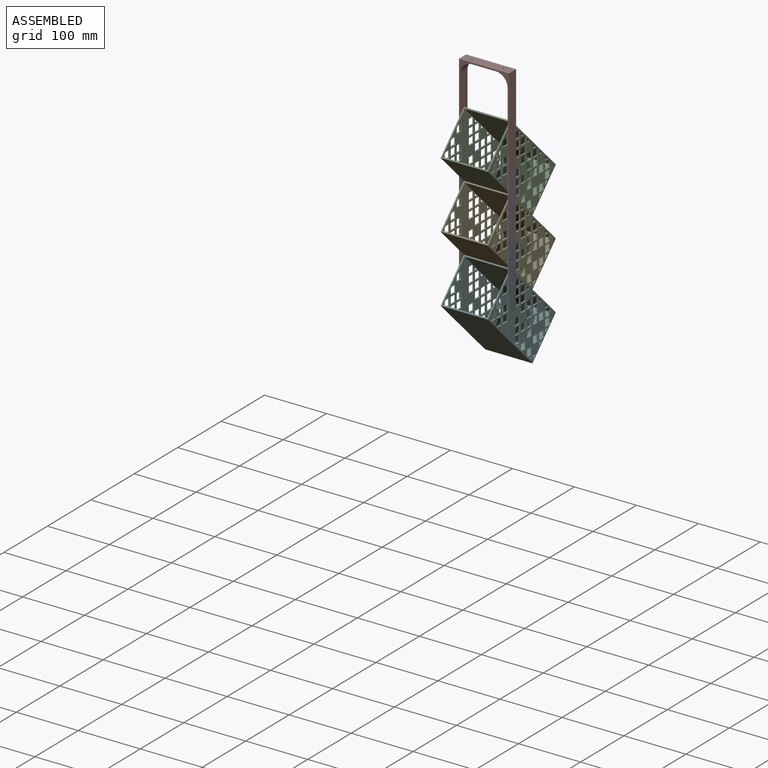
[diagram: assembled view]
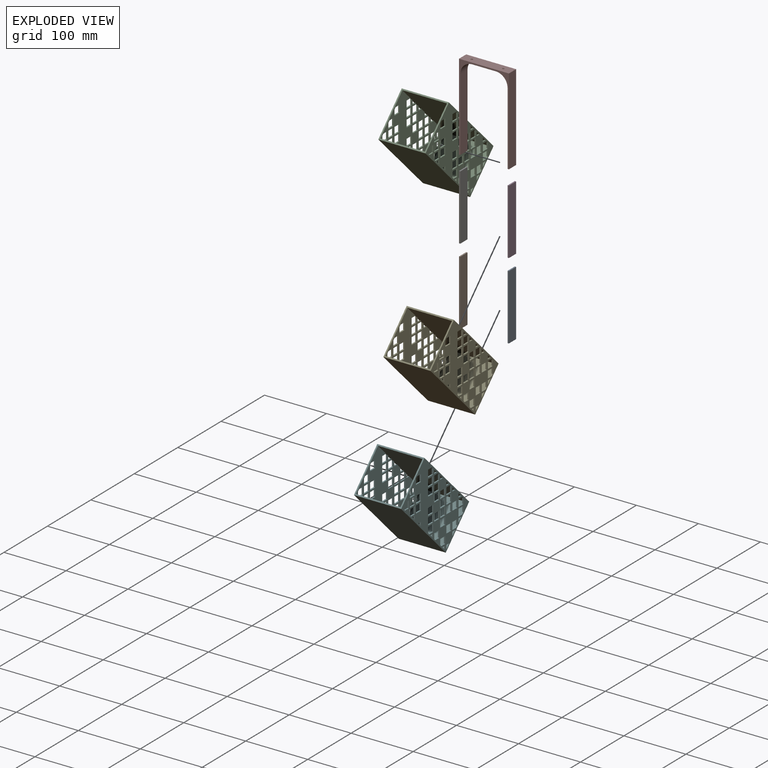
[diagram: exploded view]
GUIDED TOUR — MATED ASSEMBLY (Onshape document 206b5d691745eabc954fe0c9, AutoMate assembly 206b5d691745eabc954fe0c9_140a9b8f5469952bd9098de0_b365c3134beb357248d4164a_default)

This assembly has 8 components, labeled P0..P7 below (a component is one placed occurrence of a part; the same part can appear more than once), held together by 7 mates. A mate is a constraint between two components; its type names the relative motion it leaves free:
  FASTENED — locks the two components together rigidly (no relative motion),
  PLANAR — leaves sliding in the plane through the listed point (normal = the listed direction) and rotation about that normal free.
Axis/direction vectors are unit vectors and 'through' points are millimeter coordinates, both in the assembly's world frame.

MATES
  1. FASTENED "Fastened 1": P2 <-> P4, direction (0.000, -0.707, -0.707) through (-21.45, 42.66, -48.39) mm
  2. PLANAR "Planar 1": P2 <-> P7, direction (1.000, 0.000, 0.000) through (16.65, 36.85, -2.67) mm
  3. FASTENED "Fastened 3": P3 <-> P7, direction (0.000, 0.000, 1.000) through (17.73, 44.93, -9.99) mm
  4. FASTENED "Fastened 6": P6 <-> P1, direction (0.000, 0.000, -1.000) through (-60.63, 44.93, -115.40) mm
  5. FASTENED "Fastened 5": P6 <-> P7, direction (0.000, 0.000, 1.000) through (-60.63, 44.93, -9.99) mm
  6. FASTENED "Fastened 2": P5 <-> P4, direction (0.000, 0.707, 0.707) through (-21.45, 96.55, -210.04) mm
  7. FASTENED "Fastened 4": P3 <-> P0, direction (0.000, 0.000, -1.000) through (17.73, 44.93, -115.40) mm

ASSEMBLY ORDER
  1. P7 — the base component [order verified]
  2. P2 [order verified]
  3. P4 [order verified]
  4. P6 [order verified]
  5. P5 [order verified]
  6. P1 [order verified]
  7. P3 [order verified]
  8. P0 [order verified]
Order-tag legend:
  [order verified] — this step's position reverses a verified removal order: the component was checked to insert without passing through the ones already placed.

Of the 8 components, 7 carry the full construction recipe — the FeatureScript program that regenerates the part's solid from scratch; the rest are supplied as boundary geometry only.
Each toured component is shown spotlighted twice — in the assembled view, then in the exploded view, where a leader line traces a displaced component back to its assembled socket (saturated green if recipe-attached, orange if geometry-only; every other component desaturated gray) — followed by its recipe or geometry summary and the mates that hold it.
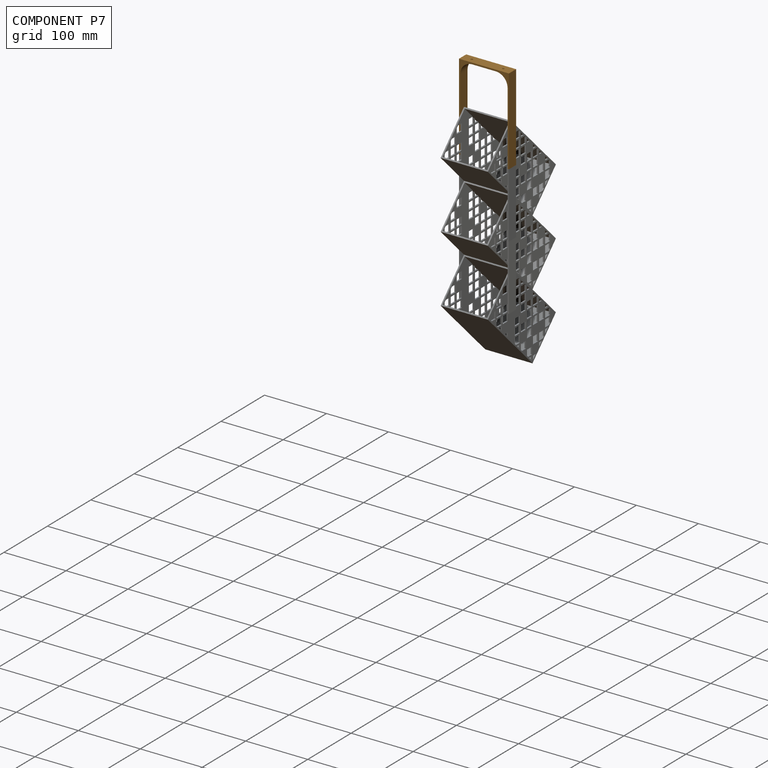
[diagram: component P7 — assembled]
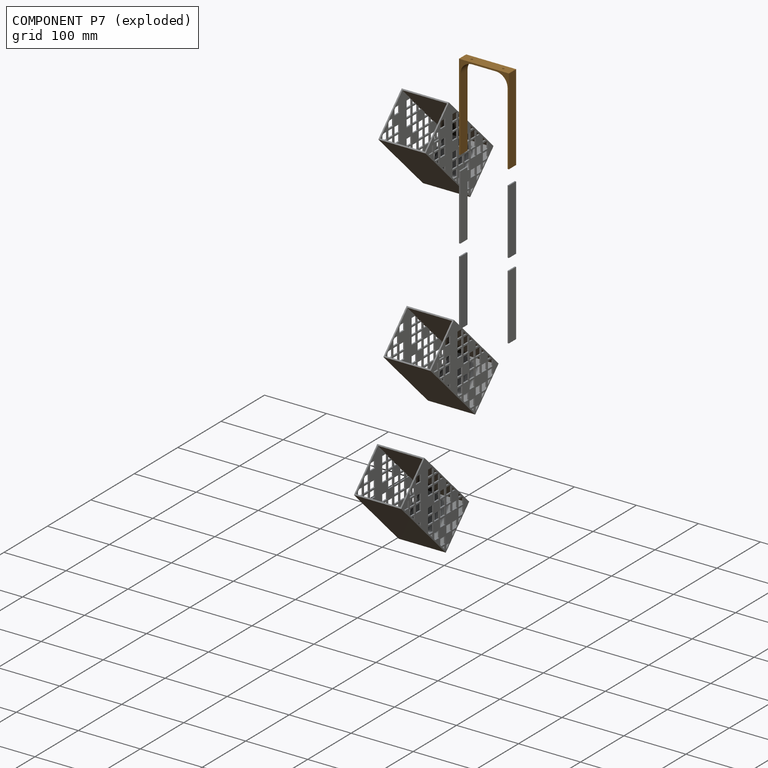
[diagram: component P7 — exploded]
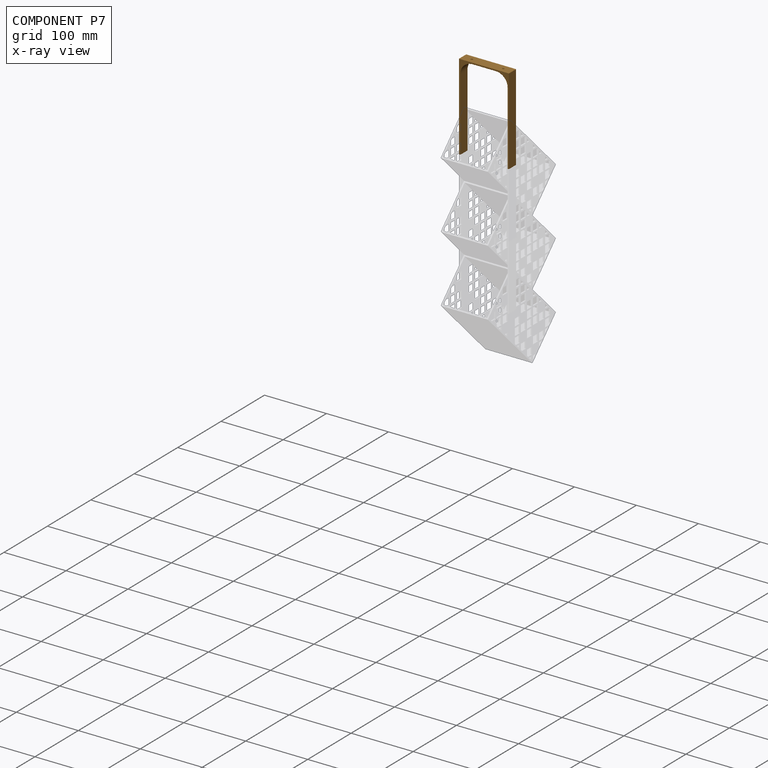
[diagram: component P7 — x-ray view]
COMPONENT P7 — geometry summary (no construction recipe available for this part):
  bounding box: 139.7 x 80.5 x 16.5 mm
  B-rep topology: 1 solid, 18 faces, 88 edges
  volume: 15716 mm^3 (8% of its bounding box)
  symmetry: 2-fold rotationally symmetric about the z axis; mirror-symmetric across its x mid-plane, y mid-plane
Held by: PLANAR mate "Planar 1" to P2; FASTENED mate "Fastened 3" to P3; FASTENED mate "Fastened 5" to P6.
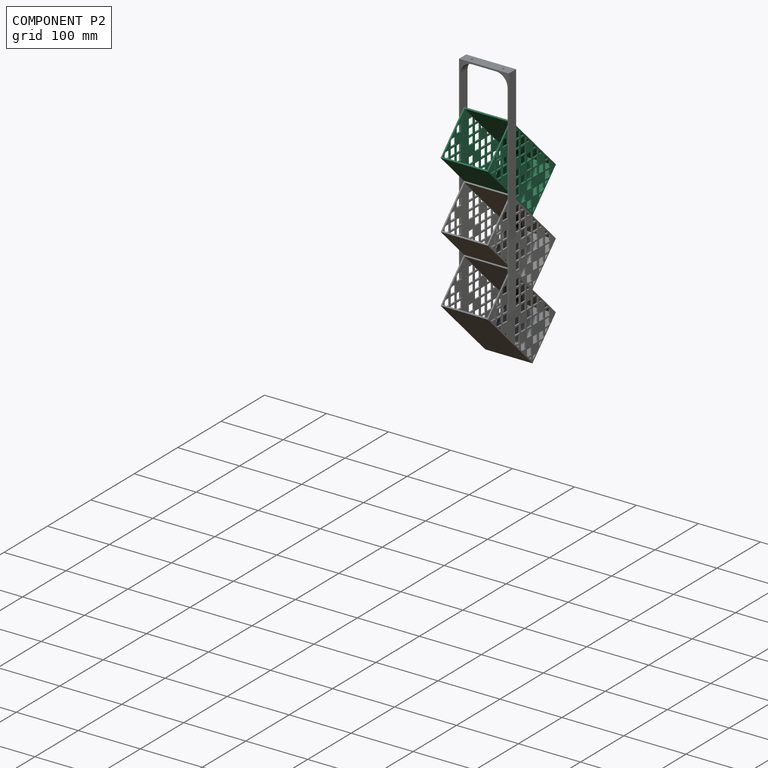
[diagram: component P2 — assembled]
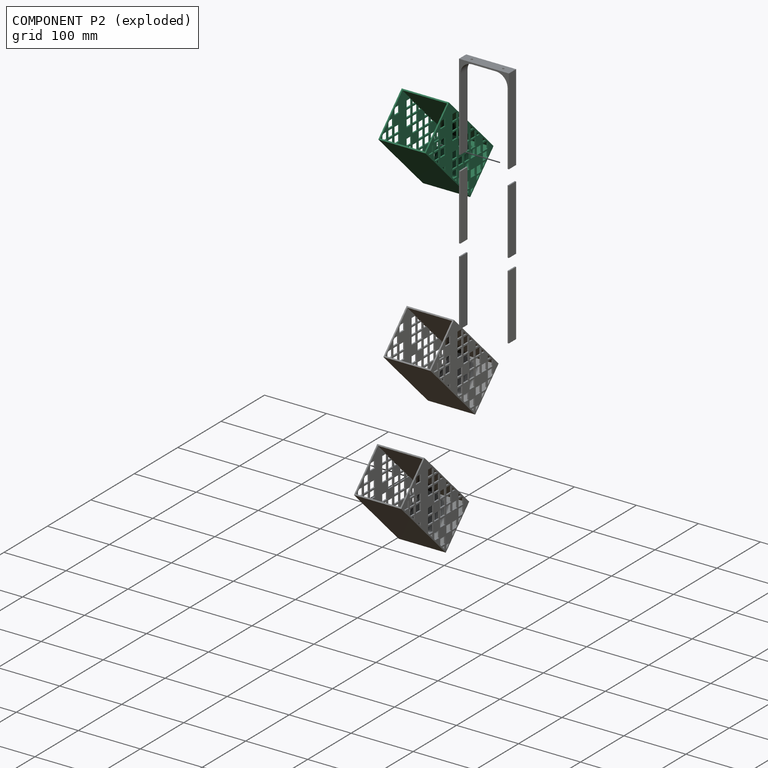
[diagram: component P2 — exploded]
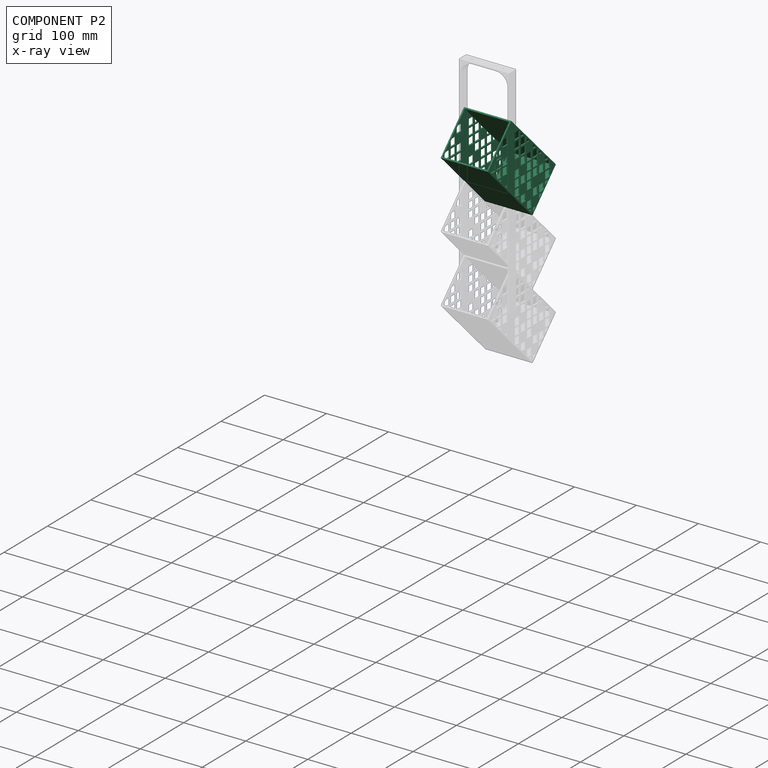
[diagram: component P2 — x-ray view]
COMPONENT P2 — recipe-attached (CADFS 00215293, mesh-verified: the recipe's output STEP matches this component's geometry to below the mesh-comparison resolution (tessellation chordal tolerance ~0.272 mm)).
Held by: FASTENED mate "Fastened 1" to P4; PLANAR mate "Planar 1" to P7.
Construction recipe (FeatureScript — the CAD program that rebuilds this solid; sketch coordinates are in the units given by the * unit suffixes, e.g. mm):

FeatureScript 1511;
import(path : "onshape/std/geometry.fs", version : "1511.0");
import(path : "onshape/std/common.fs", version : "1511.0");
const mm = millimeter;
const VERTEX = EntityType.VERTEX;
const EDGE = EntityType.EDGE;
const FACE = EntityType.FACE;
const BODY = EntityType.BODY;
function v(x, y){return vector(x, y);}
function OD(order){return orderDisambiguation(order);}
function OSD(set){return originalSetDisambiguation(set);}
function TD(topology){return topologyDisambiguation(topology);}
function TDD(query){return trueDependencyDisambiguation(query);}
function sQuery(a, b, c) {return sketchEntityQuery(a, b, c);}

annotation { "Feature Type Name" : "Feature", "Feature Type Description" : "" }
export const myFeature = defineFeature(function(context is Context, id is Id, definition is map)
    precondition{}
    {
        {
            var Q0;
            Q0=qCreatedBy(makeId("Top.planeOp"),FACE);
            var sketch = newSketch(context, id + "F0", { "sketchPlane" : qUnion([Q0])});
            skLineSegment(sketch, "E0.bottom", {"start": v(0, 0) * mm, "end": v(76.2, 0) * mm});
            skLineSegment(sketch, "E0.top", {"start": v(0, 76.2) * mm, "end": v(76.2, 76.2) * mm});
            skLineSegment(sketch, "E0.left", {"start": v(0, 0) * mm, "end": v(0, 76.2) * mm});
            skLineSegment(sketch, "E0.right", {"start": v(76.2, 0) * mm, "end": v(76.2, 76.2) * mm});
            skSolve(sketch);
        }
        {
            var Q0;
            Q0 = qSketchRegion(id + "F0", true);
            extrude(context, id + "F1", {"entities" : qUnion([Q0]), "depth" : 1.98 * mm});
        }
        {
            var Q0;
            Q0=makeQuery(id+"F1.opExtrude","CAP_FACE",FACE,{"disambiguationData":[OSD([sQuery(id+"F0.wireOp",EDGE,"E0.bottom"),sQuery(id+"F0.wireOp",EDGE,"E0.top"),sQuery(id+"F0.wireOp",EDGE,"E0.left"),sQuery(id+"F0.wireOp",EDGE,"E0.right")])],"isStart":false});
            var sketch = newSketch(context, id + "F2", { "sketchPlane" : qUnion([Q0])});
            skLineSegment(sketch, "E1.0", {"start": v(0, 76.2) * mm, "end": v(76.2, 76.2) * mm});
            skLineSegment(sketch, "E1.1", {"start": v(76.2, 0) * mm, "end": v(76.2, 76.2) * mm});
            skLineSegment(sketch, "E1.2", {"start": v(0, 0) * mm, "end": v(76.2, 0) * mm});
            skLineSegment(sketch, "E1.3", {"start": v(0, 0) * mm, "end": v(0, 76.2) * mm});
            skLineSegment(sketch, "E2.0", {"start": v(2.16, 2.16) * mm, "end": v(2.16, 74.04) * mm});
            skLineSegment(sketch, "E2.1", {"start": v(2.16, 2.16) * mm, "end": v(74.04, 2.16) * mm});
            skLineSegment(sketch, "E2.2", {"start": v(74.04, 2.16) * mm, "end": v(74.04, 74.04) * mm});
            skLineSegment(sketch, "E2.3", {"start": v(2.16, 74.04) * mm, "end": v(74.04, 74.04) * mm});
            skSolve(sketch);
        }
        {
            var Q0;
            Q0 = qSketchRegion(id + "F2", true);
            extrude(context, id + "F3", {"entities" : qUnion([Q0]), "operationType" : NewBodyOperationType.ADD, "depth" : 143.5 * mm});
        }
        {
            var Q0;
            Q0=makeQuery(id+"F3.boolean.opBoolean","MERGE",FACE,{"derivedFrom":[makeQuery(id+"F1.opExtrude","SWEPT_FACE",FACE,{"disambiguationData":[OSD([sQuery(id+"F0.wireOp",EDGE,"E0.bottom")])]}),makeQuery(id+"F3.opExtrude","SWEPT_FACE",FACE,{"disambiguationData":[OSD([sQuery(id+"F2.wireOp",EDGE,"E1.2")])]})]});
            var sketch = newSketch(context, id + "F4", { "sketchPlane" : qUnion([Q0])});
            skLineSegment(sketch, "E3", {"start": v(76.2, 137.41) * mm, "end": v(0, 61.21) * mm});
            skLineSegment(sketch, "E4", {"start": v(0, 61.21) * mm, "end": v(0, 77.38) * mm});
            skLineSegment(sketch, "E5", {"start": v(0, 77.38) * mm, "end": v(68.12, 145.5) * mm});
            skLineSegment(sketch, "E6", {"start": v(68.12, 145.5) * mm, "end": v(76.2, 145.5) * mm});
            skLineSegment(sketch, "E7", {"start": v(76.2, 145.5) * mm, "end": v(76.2, 137.41) * mm});
            skLineSegment(sketch, "E8", {"start": v(76.2, 133.82) * mm, "end": v(0, 57.62) * mm});
            skLineSegment(sketch, "E9", {"start": v(0, 57.62) * mm, "end": v(0, 41.46) * mm});
            skLineSegment(sketch, "E10", {"start": v(0, 41.46) * mm, "end": v(76.2, 117.66) * mm});
            skLineSegment(sketch, "E11", {"start": v(76.2, 117.66) * mm, "end": v(76.2, 133.82) * mm});
            skLineSegment(sketch, "E12", {"start": v(76.2, 114.06) * mm, "end": v(0, 37.86) * mm});
            skLineSegment(sketch, "E13", {"start": v(0, 37.86) * mm, "end": v(0, 21.7) * mm});
            skLineSegment(sketch, "E14", {"start": v(0, 21.7) * mm, "end": v(76.2, 97.9) * mm});
            skLineSegment(sketch, "E15", {"start": v(76.2, 97.9) * mm, "end": v(76.2, 114.06) * mm});
            skLineSegment(sketch, "E16", {"start": v(76.2, 94.3) * mm, "end": v(0, 18.1) * mm});
            skLineSegment(sketch, "E17", {"start": v(0, 18.1) * mm, "end": v(0, 1.94) * mm});
            skLineSegment(sketch, "E18", {"start": v(0, 1.94) * mm, "end": v(76.2, 78.14) * mm});
            skLineSegment(sketch, "E19", {"start": v(76.2, 78.14) * mm, "end": v(76.2, 94.3) * mm});
            skLineSegment(sketch, "E20", {"start": v(76.2, 74.55) * mm, "end": v(1.65, 0) * mm});
            skLineSegment(sketch, "E21", {"start": v(1.65, 0) * mm, "end": v(17.81, 0) * mm});
            skLineSegment(sketch, "E22", {"start": v(17.81, 0) * mm, "end": v(76.2, 58.39) * mm});
            skLineSegment(sketch, "E23", {"start": v(76.2, 58.39) * mm, "end": v(76.2, 74.55) * mm});
            skLineSegment(sketch, "E24", {"start": v(76.2, 54.8) * mm, "end": v(21.4, 0) * mm});
            skLineSegment(sketch, "E25", {"start": v(21.4, 0) * mm, "end": v(37.57, 0) * mm});
            skLineSegment(sketch, "E26", {"start": v(37.57, 0) * mm, "end": v(76.2, 38.63) * mm});
            skLineSegment(sketch, "E27", {"start": v(76.2, 38.63) * mm, "end": v(76.2, 54.8) * mm});
            skLineSegment(sketch, "E28", {"start": v(76.2, 35.04) * mm, "end": v(41.16, 0) * mm});
            skLineSegment(sketch, "E29", {"start": v(41.16, 0) * mm, "end": v(57.33, 0) * mm});
            skLineSegment(sketch, "E30", {"start": v(57.33, 0) * mm, "end": v(76.2, 18.87) * mm});
            skLineSegment(sketch, "E31", {"start": v(76.2, 18.87) * mm, "end": v(76.2, 35.04) * mm});
            skLineSegment(sketch, "E32", {"start": v(76.2, 15.28) * mm, "end": v(60.92, 0) * mm});
            skLineSegment(sketch, "E33", {"start": v(64.53, 145.5) * mm, "end": v(0, 80.97) * mm});
            skLineSegment(sketch, "E34", {"start": v(0, 80.97) * mm, "end": v(0, 97.13) * mm});
            skLineSegment(sketch, "E35", {"start": v(0, 97.13) * mm, "end": v(48.36, 145.5) * mm});
            skLineSegment(sketch, "E36", {"start": v(48.36, 145.5) * mm, "end": v(64.53, 145.5) * mm});
            skLineSegment(sketch, "E37", {"start": v(44.77, 145.5) * mm, "end": v(0, 100.72) * mm});
            skLineSegment(sketch, "E38", {"start": v(0, 100.72) * mm, "end": v(0, 116.89) * mm});
            skLineSegment(sketch, "E39", {"start": v(0, 116.89) * mm, "end": v(28.6, 145.5) * mm});
            skLineSegment(sketch, "E40", {"start": v(28.6, 145.5) * mm, "end": v(44.77, 145.5) * mm});
            skLineSegment(sketch, "E41", {"start": v(25.01, 145.5) * mm, "end": v(0, 120.48) * mm});
            skLineSegment(sketch, "E42", {"start": v(0, 120.48) * mm, "end": v(0, 136.65) * mm});
            skLineSegment(sketch, "E43", {"start": v(0, 136.65) * mm, "end": v(8.85, 145.5) * mm});
            skLineSegment(sketch, "E44", {"start": v(8.85, 145.5) * mm, "end": v(25.01, 145.5) * mm});
            skLineSegment(sketch, "E45", {"start": v(8.08, 145.5) * mm, "end": v(76.2, 77.38) * mm});
            skLineSegment(sketch, "E46", {"start": v(76.2, 77.38) * mm, "end": v(76.2, 61.21) * mm});
            skLineSegment(sketch, "E47", {"start": v(76.2, 61.21) * mm, "end": v(0, 137.41) * mm});
            skLineSegment(sketch, "E48", {"start": v(0, 133.82) * mm, "end": v(76.2, 57.62) * mm});
            skLineSegment(sketch, "E49", {"start": v(76.2, 57.62) * mm, "end": v(76.2, 41.46) * mm});
            skLineSegment(sketch, "E50", {"start": v(76.2, 41.46) * mm, "end": v(0, 117.66) * mm});
            skLineSegment(sketch, "E51", {"start": v(0, 117.66) * mm, "end": v(0, 133.82) * mm});
            skLineSegment(sketch, "E52", {"start": v(0, 114.06) * mm, "end": v(76.2, 37.86) * mm});
            skLineSegment(sketch, "E53", {"start": v(76.2, 37.86) * mm, "end": v(76.2, 21.7) * mm});
            skLineSegment(sketch, "E54", {"start": v(76.2, 21.7) * mm, "end": v(0, 97.9) * mm});
            skLineSegment(sketch, "E55", {"start": v(0, 97.9) * mm, "end": v(0, 114.06) * mm});
            skLineSegment(sketch, "E56", {"start": v(0, 94.3) * mm, "end": v(76.2, 18.1) * mm});
            skLineSegment(sketch, "E57", {"start": v(76.2, 18.1) * mm, "end": v(76.2, 15.28) * mm});
            skLineSegment(sketch, "E58", {"start": v(0, 78.14) * mm, "end": v(76.2, 1.94) * mm});
            skLineSegment(sketch, "E59", {"start": v(0, 74.55) * mm, "end": v(74.55, 0) * mm});
            skLineSegment(sketch, "E60", {"start": v(0, 58.39) * mm, "end": v(58.39, 0) * mm});
            skLineSegment(sketch, "E61", {"start": v(58.39, 0) * mm, "end": v(54.8, 0) * mm});
            skLineSegment(sketch, "E62", {"start": v(54.8, 0) * mm, "end": v(0, 54.8) * mm});
            skLineSegment(sketch, "E63", {"start": v(0, 54.8) * mm, "end": v(0, 58.39) * mm});
            skLineSegment(sketch, "E64", {"start": v(0, 38.63) * mm, "end": v(38.63, 0) * mm});
            skLineSegment(sketch, "E65", {"start": v(38.63, 0) * mm, "end": v(35.04, 0) * mm});
            skLineSegment(sketch, "E66", {"start": v(35.04, 0) * mm, "end": v(0, 35.04) * mm});
            skLineSegment(sketch, "E67", {"start": v(0, 35.04) * mm, "end": v(0, 38.63) * mm});
            skLineSegment(sketch, "E68", {"start": v(0, 18.87) * mm, "end": v(18.87, 0) * mm});
            skLineSegment(sketch, "E69", {"start": v(18.87, 0) * mm, "end": v(15.28, 0) * mm});
            skLineSegment(sketch, "E70", {"start": v(15.28, 0) * mm, "end": v(0, 15.28) * mm});
            skLineSegment(sketch, "E71", {"start": v(0, 15.28) * mm, "end": v(0, 18.87) * mm});
            skLineSegment(sketch, "E72", {"start": v(11.67, 145.5) * mm, "end": v(76.2, 80.97) * mm});
            skLineSegment(sketch, "E73", {"start": v(27.84, 145.5) * mm, "end": v(76.2, 97.13) * mm});
            skLineSegment(sketch, "E74", {"start": v(76.2, 97.13) * mm, "end": v(76.2, 100.72) * mm});
            skLineSegment(sketch, "E75", {"start": v(76.2, 100.72) * mm, "end": v(31.43, 145.5) * mm});
            skLineSegment(sketch, "E76", {"start": v(31.43, 145.5) * mm, "end": v(27.84, 145.5) * mm});
            skLineSegment(sketch, "E77", {"start": v(47.6, 145.5) * mm, "end": v(76.2, 116.89) * mm});
            skLineSegment(sketch, "E78", {"start": v(76.2, 116.89) * mm, "end": v(76.2, 120.48) * mm});
            skLineSegment(sketch, "E79", {"start": v(76.2, 120.48) * mm, "end": v(51.19, 145.5) * mm});
            skLineSegment(sketch, "E80", {"start": v(51.19, 145.5) * mm, "end": v(47.6, 145.5) * mm});
            skLineSegment(sketch, "E81", {"start": v(67.35, 145.5) * mm, "end": v(76.2, 136.65) * mm});
            skLineSegment(sketch, "E82.0", {"start": v(2.16, 2.16) * mm, "end": v(74.04, 2.16) * mm});
            skLineSegment(sketch, "E82.1", {"start": v(2.16, 143.34) * mm, "end": v(2.16, 2.16) * mm});
            skLineSegment(sketch, "E82.2", {"start": v(2.16, 143.34) * mm, "end": v(74.04, 143.34) * mm});
            skLineSegment(sketch, "E82.3", {"start": v(74.04, 143.34) * mm, "end": v(74.04, 2.16) * mm});
            skSolve(sketch);
        }
        {
            var Q0;
            {var subQ1=sQuery(id+"F4.wireOp",EDGE,"E41");var subQ5=sQuery(id+"F4.wireOp",EDGE,"E45");var subQ6=makeQuery(id+"F4.imprint","INTERSECT",VERTEX,{"derivedFrom":[subQ1,subQ5]});Q0=makeQuery(id+"F4.imprint","IMPRINT",FACE,{"disambiguationData":[TD([[makeQuery(id+"F4.imprint","IMPRINT",EDGE,{"disambiguationData":[TD([[subQ6,-1.0]])],"derivedFrom":subQ1}),-1.0]])]});}
            var Q1;
            {var subQ1=sQuery(id+"F4.wireOp",EDGE,"E37");var subQ5=sQuery(id+"F4.wireOp",EDGE,"E73");var subQ6=makeQuery(id+"F4.imprint","INTERSECT",VERTEX,{"derivedFrom":[subQ1,subQ5]});Q1=makeQuery(id+"F4.imprint","IMPRINT",FACE,{"disambiguationData":[TD([[makeQuery(id+"F4.imprint","IMPRINT",EDGE,{"disambiguationData":[TD([[subQ6,-1.0]])],"derivedFrom":subQ1}),-1.0]])]});}
            var Q2;
            {var subQ0=sQuery(id+"F4.wireOp",EDGE,"E77");var subQ1=sQuery(id+"F4.wireOp",EDGE,"E33");var subQ2=makeQuery(id+"F4.imprint","INTERSECT",VERTEX,{"derivedFrom":[subQ1,subQ0]});Q2=makeQuery(id+"F4.imprint","IMPRINT",FACE,{"disambiguationData":[TD([[makeQuery(id+"F4.imprint","IMPRINT",EDGE,{"disambiguationData":[TD([[subQ2,-1.0]])],"derivedFrom":subQ1}),-1.0]])]});}
            var Q3;
            {var subQ0=sQuery(id+"F4.wireOp",EDGE,"E45");var subQ1=sQuery(id+"F4.wireOp",EDGE,"E37");var subQ2=makeQuery(id+"F4.imprint","INTERSECT",VERTEX,{"derivedFrom":[subQ1,subQ0]});Q3=makeQuery(id+"F4.imprint","IMPRINT",FACE,{"disambiguationData":[TD([[makeQuery(id+"F4.imprint","IMPRINT",EDGE,{"disambiguationData":[TD([[subQ2,-1.0]])],"derivedFrom":subQ1}),-1.0]])]});}
            var Q4;
            {var subQ1=sQuery(id+"F4.wireOp",EDGE,"E37");var subQ5=sQuery(id+"F4.wireOp",EDGE,"E48");var subQ6=makeQuery(id+"F4.imprint","INTERSECT",VERTEX,{"derivedFrom":[subQ1,subQ5]});Q4=makeQuery(id+"F4.imprint","IMPRINT",FACE,{"disambiguationData":[TD([[makeQuery(id+"F4.imprint","IMPRINT",EDGE,{"disambiguationData":[TD([[subQ6,-1.0]])],"derivedFrom":subQ1}),-1.0]])]});}
            var Q5;
            {var subQ0=sQuery(id+"F4.wireOp",EDGE,"E48");var subQ1=sQuery(id+"F4.wireOp",EDGE,"E33");var subQ2=makeQuery(id+"F4.imprint","INTERSECT",VERTEX,{"derivedFrom":[subQ1,subQ0]});Q5=makeQuery(id+"F4.imprint","IMPRINT",FACE,{"disambiguationData":[TD([[makeQuery(id+"F4.imprint","IMPRINT",EDGE,{"disambiguationData":[TD([[subQ2,-1.0]])],"derivedFrom":subQ1}),-1.0]])]});}
            var Q6;
            {var subQ0=sQuery(id+"F4.wireOp",EDGE,"E45");var subQ1=sQuery(id+"F4.wireOp",EDGE,"E33");var subQ2=makeQuery(id+"F4.imprint","INTERSECT",VERTEX,{"derivedFrom":[subQ1,subQ0]});Q6=makeQuery(id+"F4.imprint","IMPRINT",FACE,{"disambiguationData":[TD([[makeQuery(id+"F4.imprint","IMPRINT",EDGE,{"disambiguationData":[TD([[subQ2,-1.0]])],"derivedFrom":subQ1}),-1.0]])]});}
            var Q7;
            {var subQ1=sQuery(id+"F4.wireOp",EDGE,"E8");var subQ7=sQuery(id+"F4.wireOp",EDGE,"E77");var subQ8=makeQuery(id+"F4.imprint","INTERSECT",VERTEX,{"derivedFrom":[subQ1,subQ7]});Q7=makeQuery(id+"F4.imprint","IMPRINT",FACE,{"disambiguationData":[TD([[makeQuery(id+"F4.imprint","IMPRINT",EDGE,{"disambiguationData":[TD([[subQ8,-1.0]])],"derivedFrom":subQ1}),1.0]])]});}
            var Q8;
            {var subQ0=sQuery(id+"F4.wireOp",EDGE,"E73");var subQ1=sQuery(id+"F4.wireOp",EDGE,"E8");var subQ2=makeQuery(id+"F4.imprint","INTERSECT",VERTEX,{"derivedFrom":[subQ1,subQ0]});Q8=makeQuery(id+"F4.imprint","IMPRINT",FACE,{"disambiguationData":[TD([[makeQuery(id+"F4.imprint","IMPRINT",EDGE,{"disambiguationData":[TD([[subQ2,-1.0]])],"derivedFrom":subQ1}),1.0]])]});}
            var Q9;
            {var subQ0=sQuery(id+"F4.wireOp",EDGE,"E45");var subQ1=sQuery(id+"F4.wireOp",EDGE,"E8");var subQ2=makeQuery(id+"F4.imprint","INTERSECT",VERTEX,{"derivedFrom":[subQ1,subQ0]});Q9=makeQuery(id+"F4.imprint","IMPRINT",FACE,{"disambiguationData":[TD([[makeQuery(id+"F4.imprint","IMPRINT",EDGE,{"disambiguationData":[TD([[subQ2,-1.0]])],"derivedFrom":subQ1}),1.0]])]});}
            var Q10;
            {var subQ0=sQuery(id+"F4.wireOp",EDGE,"E52");var subQ1=sQuery(id+"F4.wireOp",EDGE,"E8");var subQ2=makeQuery(id+"F4.imprint","INTERSECT",VERTEX,{"derivedFrom":[subQ1,subQ0]});Q10=makeQuery(id+"F4.imprint","IMPRINT",FACE,{"disambiguationData":[TD([[makeQuery(id+"F4.imprint","IMPRINT",EDGE,{"disambiguationData":[TD([[subQ2,-1.0]])],"derivedFrom":subQ1}),1.0]])]});}
            var Q11;
            {var subQ0=sQuery(id+"F4.wireOp",EDGE,"E56");var subQ1=sQuery(id+"F4.wireOp",EDGE,"E8");var subQ2=makeQuery(id+"F4.imprint","INTERSECT",VERTEX,{"derivedFrom":[subQ1,subQ0]});Q11=makeQuery(id+"F4.imprint","IMPRINT",FACE,{"disambiguationData":[TD([[makeQuery(id+"F4.imprint","IMPRINT",EDGE,{"disambiguationData":[TD([[subQ2,-1.0]])],"derivedFrom":subQ1}),1.0]])]});}
            var Q12;
            {var subQ5=sQuery(id+"F4.wireOp",EDGE,"E59");var subQ6=sQuery(id+"F4.wireOp",EDGE,"E8");var subQ7=makeQuery(id+"F4.imprint","INTERSECT",VERTEX,{"derivedFrom":[subQ6,subQ5]});Q12=makeQuery(id+"F4.imprint","IMPRINT",FACE,{"disambiguationData":[TD([[makeQuery(id+"F4.imprint","IMPRINT",EDGE,{"disambiguationData":[TD([[subQ7,-1.0]])],"derivedFrom":subQ6}),1.0]])]});}
            var Q13;
            {var subQ0=sQuery(id+"F4.wireOp",EDGE,"E73");var subQ1=sQuery(id+"F4.wireOp",EDGE,"E12");var subQ2=makeQuery(id+"F4.imprint","INTERSECT",VERTEX,{"derivedFrom":[subQ1,subQ0]});Q13=makeQuery(id+"F4.imprint","IMPRINT",FACE,{"disambiguationData":[TD([[makeQuery(id+"F4.imprint","IMPRINT",EDGE,{"disambiguationData":[TD([[subQ2,-1.0]])],"derivedFrom":subQ1}),1.0]])]});}
            var Q14;
            {var subQ0=sQuery(id+"F4.wireOp",EDGE,"E45");var subQ1=sQuery(id+"F4.wireOp",EDGE,"E12");var subQ2=makeQuery(id+"F4.imprint","INTERSECT",VERTEX,{"derivedFrom":[subQ1,subQ0]});Q14=makeQuery(id+"F4.imprint","IMPRINT",FACE,{"disambiguationData":[TD([[makeQuery(id+"F4.imprint","IMPRINT",EDGE,{"disambiguationData":[TD([[subQ2,-1.0]])],"derivedFrom":subQ1}),1.0]])]});}
            var Q15;
            {var subQ0=sQuery(id+"F4.wireOp",EDGE,"E48");var subQ1=sQuery(id+"F4.wireOp",EDGE,"E12");var subQ2=makeQuery(id+"F4.imprint","INTERSECT",VERTEX,{"derivedFrom":[subQ1,subQ0]});Q15=makeQuery(id+"F4.imprint","IMPRINT",FACE,{"disambiguationData":[TD([[makeQuery(id+"F4.imprint","IMPRINT",EDGE,{"disambiguationData":[TD([[subQ2,-1.0]])],"derivedFrom":subQ1}),1.0]])]});}
            var Q16;
            {var subQ0=sQuery(id+"F4.wireOp",EDGE,"E56");var subQ1=sQuery(id+"F4.wireOp",EDGE,"E12");var subQ2=makeQuery(id+"F4.imprint","INTERSECT",VERTEX,{"derivedFrom":[subQ1,subQ0]});Q16=makeQuery(id+"F4.imprint","IMPRINT",FACE,{"disambiguationData":[TD([[makeQuery(id+"F4.imprint","IMPRINT",EDGE,{"disambiguationData":[TD([[subQ2,-1.0]])],"derivedFrom":subQ1}),1.0]])]});}
            var Q17;
            {var subQ5=sQuery(id+"F4.wireOp",EDGE,"E62");var subQ6=sQuery(id+"F4.wireOp",EDGE,"E12");var subQ7=makeQuery(id+"F4.imprint","INTERSECT",VERTEX,{"derivedFrom":[subQ6,subQ5]});Q17=makeQuery(id+"F4.imprint","IMPRINT",FACE,{"disambiguationData":[TD([[makeQuery(id+"F4.imprint","IMPRINT",EDGE,{"disambiguationData":[TD([[subQ7,-1.0]])],"derivedFrom":subQ6}),1.0]])]});}
            var Q18;
            {var subQ0=sQuery(id+"F4.wireOp",EDGE,"E48");var subQ1=sQuery(id+"F4.wireOp",EDGE,"E16");var subQ2=makeQuery(id+"F4.imprint","INTERSECT",VERTEX,{"derivedFrom":[subQ1,subQ0]});Q18=makeQuery(id+"F4.imprint","IMPRINT",FACE,{"disambiguationData":[TD([[makeQuery(id+"F4.imprint","IMPRINT",EDGE,{"disambiguationData":[TD([[subQ2,-1.0]])],"derivedFrom":subQ1}),1.0]])]});}
            var Q19;
            {var subQ0=sQuery(id+"F4.wireOp",EDGE,"E52");var subQ1=sQuery(id+"F4.wireOp",EDGE,"E16");var subQ2=makeQuery(id+"F4.imprint","INTERSECT",VERTEX,{"derivedFrom":[subQ1,subQ0]});Q19=makeQuery(id+"F4.imprint","IMPRINT",FACE,{"disambiguationData":[TD([[makeQuery(id+"F4.imprint","IMPRINT",EDGE,{"disambiguationData":[TD([[subQ2,-1.0]])],"derivedFrom":subQ1}),1.0]])]});}
            var Q20;
            {var subQ0=sQuery(id+"F4.wireOp",EDGE,"E56");var subQ1=sQuery(id+"F4.wireOp",EDGE,"E16");var subQ2=makeQuery(id+"F4.imprint","INTERSECT",VERTEX,{"derivedFrom":[subQ1,subQ0]});Q20=makeQuery(id+"F4.imprint","IMPRINT",FACE,{"disambiguationData":[TD([[makeQuery(id+"F4.imprint","IMPRINT",EDGE,{"disambiguationData":[TD([[subQ2,-1.0]])],"derivedFrom":subQ1}),1.0]])]});}
            var Q21;
            {var subQ0=sQuery(id+"F4.wireOp",EDGE,"E59");var subQ1=sQuery(id+"F4.wireOp",EDGE,"E16");var subQ2=makeQuery(id+"F4.imprint","INTERSECT",VERTEX,{"derivedFrom":[subQ1,subQ0]});Q21=makeQuery(id+"F4.imprint","IMPRINT",FACE,{"disambiguationData":[TD([[makeQuery(id+"F4.imprint","IMPRINT",EDGE,{"disambiguationData":[TD([[subQ2,-1.0]])],"derivedFrom":subQ1}),1.0]])]});}
            var Q22;
            {var subQ0=sQuery(id+"F4.wireOp",EDGE,"E66");var subQ1=sQuery(id+"F4.wireOp",EDGE,"E16");var subQ2=makeQuery(id+"F4.imprint","INTERSECT",VERTEX,{"derivedFrom":[subQ1,subQ0]});Q22=makeQuery(id+"F4.imprint","IMPRINT",FACE,{"disambiguationData":[TD([[makeQuery(id+"F4.imprint","IMPRINT",EDGE,{"disambiguationData":[TD([[subQ2,-1.0]])],"derivedFrom":subQ1}),1.0]])]});}
            var Q23;
            {var subQ1=sQuery(id+"F4.wireOp",EDGE,"E20");var subQ5=sQuery(id+"F4.wireOp",EDGE,"E48");var subQ6=makeQuery(id+"F4.imprint","INTERSECT",VERTEX,{"derivedFrom":[subQ1,subQ5]});Q23=makeQuery(id+"F4.imprint","IMPRINT",FACE,{"disambiguationData":[TD([[makeQuery(id+"F4.imprint","IMPRINT",EDGE,{"disambiguationData":[TD([[subQ6,-1.0]])],"derivedFrom":subQ1}),1.0]])]});}
            var Q24;
            {var subQ0=sQuery(id+"F4.wireOp",EDGE,"E52");var subQ1=sQuery(id+"F4.wireOp",EDGE,"E20");var subQ2=makeQuery(id+"F4.imprint","INTERSECT",VERTEX,{"derivedFrom":[subQ1,subQ0]});Q24=makeQuery(id+"F4.imprint","IMPRINT",FACE,{"disambiguationData":[TD([[makeQuery(id+"F4.imprint","IMPRINT",EDGE,{"disambiguationData":[TD([[subQ2,-1.0]])],"derivedFrom":subQ1}),1.0]])]});}
            var Q25;
            {var subQ0=sQuery(id+"F4.wireOp",EDGE,"E56");var subQ1=sQuery(id+"F4.wireOp",EDGE,"E20");var subQ2=makeQuery(id+"F4.imprint","INTERSECT",VERTEX,{"derivedFrom":[subQ1,subQ0]});Q25=makeQuery(id+"F4.imprint","IMPRINT",FACE,{"disambiguationData":[TD([[makeQuery(id+"F4.imprint","IMPRINT",EDGE,{"disambiguationData":[TD([[subQ2,-1.0]])],"derivedFrom":subQ1}),1.0]])]});}
            var Q26;
            {var subQ0=sQuery(id+"F4.wireOp",EDGE,"E52");var subQ1=sQuery(id+"F4.wireOp",EDGE,"E37");var subQ2=makeQuery(id+"F4.imprint","INTERSECT",VERTEX,{"derivedFrom":[subQ1,subQ0]});Q26=makeQuery(id+"F4.imprint","IMPRINT",FACE,{"disambiguationData":[TD([[makeQuery(id+"F4.imprint","IMPRINT",EDGE,{"disambiguationData":[TD([[subQ2,-1.0]])],"derivedFrom":subQ1}),-1.0]])]});}
            var Q27;
            {var subQ0=sQuery(id+"F4.wireOp",EDGE,"E82.3");var subQ1=sQuery(id+"F4.wireOp",EDGE,"E12");var subQ2=makeQuery(id+"F4.imprint","INTERSECT",VERTEX,{"derivedFrom":[subQ1,subQ0]});Q27=makeQuery(id+"F4.imprint","IMPRINT",FACE,{"disambiguationData":[TD([[makeQuery(id+"F4.imprint","IMPRINT",EDGE,{"disambiguationData":[TD([[subQ2,-1.0]])],"derivedFrom":subQ1}),1.0]])]});}
            var Q28;
            {var subQ0=sQuery(id+"F4.wireOp",EDGE,"E82.3");var subQ1=sQuery(id+"F4.wireOp",EDGE,"E16");var subQ2=makeQuery(id+"F4.imprint","INTERSECT",VERTEX,{"derivedFrom":[subQ1,subQ0]});Q28=makeQuery(id+"F4.imprint","IMPRINT",FACE,{"disambiguationData":[TD([[makeQuery(id+"F4.imprint","IMPRINT",EDGE,{"disambiguationData":[TD([[subQ2,-1.0]])],"derivedFrom":subQ1}),1.0]])]});}
            var Q29;
            {var subQ0=sQuery(id+"F4.wireOp",EDGE,"E82.3");var subQ1=sQuery(id+"F4.wireOp",EDGE,"E20");var subQ2=makeQuery(id+"F4.imprint","INTERSECT",VERTEX,{"derivedFrom":[subQ1,subQ0]});Q29=makeQuery(id+"F4.imprint","IMPRINT",FACE,{"disambiguationData":[TD([[makeQuery(id+"F4.imprint","IMPRINT",EDGE,{"disambiguationData":[TD([[subQ2,-1.0]])],"derivedFrom":subQ1}),1.0]])]});}
            var Q30;
            {var subQ0=sQuery(id+"F4.wireOp",EDGE,"E82.1");var subQ1=sQuery(id+"F4.wireOp",EDGE,"E10");var subQ2=makeQuery(id+"F4.imprint","INTERSECT",VERTEX,{"derivedFrom":[subQ1,subQ0]});Q30=makeQuery(id+"F4.imprint","IMPRINT",FACE,{"disambiguationData":[TD([[makeQuery(id+"F4.imprint","IMPRINT",EDGE,{"disambiguationData":[TD([[subQ2,-1.0]])],"derivedFrom":subQ1}),1.0]])]});}
            var Q31;
            {var subQ0=sQuery(id+"F4.wireOp",EDGE,"E62");var subQ1=sQuery(id+"F4.wireOp",EDGE,"E20");var subQ2=makeQuery(id+"F4.imprint","INTERSECT",VERTEX,{"derivedFrom":[subQ1,subQ0]});Q31=makeQuery(id+"F4.imprint","IMPRINT",FACE,{"disambiguationData":[TD([[makeQuery(id+"F4.imprint","IMPRINT",EDGE,{"disambiguationData":[TD([[subQ2,-1.0]])],"derivedFrom":subQ1}),1.0]])]});}
            var Q32;
            {var subQ0=sQuery(id+"F4.wireOp",EDGE,"E82.3");var subQ1=sQuery(id+"F4.wireOp",EDGE,"E24");var subQ2=makeQuery(id+"F4.imprint","INTERSECT",VERTEX,{"derivedFrom":[subQ1,subQ0]});Q32=makeQuery(id+"F4.imprint","IMPRINT",FACE,{"disambiguationData":[TD([[makeQuery(id+"F4.imprint","IMPRINT",EDGE,{"disambiguationData":[TD([[subQ2,-1.0]])],"derivedFrom":subQ1}),1.0]])]});}
            var Q33;
            {var subQ0=sQuery(id+"F4.wireOp",EDGE,"E82.3");var subQ1=sQuery(id+"F4.wireOp",EDGE,"E28");var subQ2=makeQuery(id+"F4.imprint","INTERSECT",VERTEX,{"derivedFrom":[subQ1,subQ0]});Q33=makeQuery(id+"F4.imprint","IMPRINT",FACE,{"disambiguationData":[TD([[makeQuery(id+"F4.imprint","IMPRINT",EDGE,{"disambiguationData":[TD([[subQ2,-1.0]])],"derivedFrom":subQ1}),1.0]])]});}
            var Q34;
            {var subQ0=sQuery(id+"F4.wireOp",EDGE,"E56");var subQ1=sQuery(id+"F4.wireOp",EDGE,"E24");var subQ2=makeQuery(id+"F4.imprint","INTERSECT",VERTEX,{"derivedFrom":[subQ1,subQ0]});Q34=makeQuery(id+"F4.imprint","IMPRINT",FACE,{"disambiguationData":[TD([[makeQuery(id+"F4.imprint","IMPRINT",EDGE,{"disambiguationData":[TD([[subQ2,-1.0]])],"derivedFrom":subQ1}),1.0]])]});}
            var Q35;
            {var subQ0=sQuery(id+"F4.wireOp",EDGE,"E70");var subQ1=sQuery(id+"F4.wireOp",EDGE,"E20");var subQ2=makeQuery(id+"F4.imprint","INTERSECT",VERTEX,{"derivedFrom":[subQ1,subQ0]});Q35=makeQuery(id+"F4.imprint","IMPRINT",FACE,{"disambiguationData":[TD([[makeQuery(id+"F4.imprint","IMPRINT",EDGE,{"disambiguationData":[TD([[subQ2,-1.0]])],"derivedFrom":subQ1}),1.0]])]});}
            var Q36;
            {var subQ0=sQuery(id+"F4.wireOp",EDGE,"E62");var subQ1=sQuery(id+"F4.wireOp",EDGE,"E28");var subQ2=makeQuery(id+"F4.imprint","INTERSECT",VERTEX,{"derivedFrom":[subQ1,subQ0]});Q36=makeQuery(id+"F4.imprint","IMPRINT",FACE,{"disambiguationData":[TD([[makeQuery(id+"F4.imprint","IMPRINT",EDGE,{"disambiguationData":[TD([[subQ2,-1.0]])],"derivedFrom":subQ1}),1.0]])]});}
            var Q37;
            {var subQ1=sQuery(id+"F4.wireOp",EDGE,"E28");var subQ7=sQuery(id+"F4.wireOp",EDGE,"E59");var subQ9=makeQuery(id+"F4.imprint","INTERSECT",VERTEX,{"derivedFrom":[subQ1,subQ7]});Q37=makeQuery(id+"F4.imprint","IMPRINT",FACE,{"disambiguationData":[TD([[makeQuery(id+"F4.imprint","IMPRINT",EDGE,{"disambiguationData":[TD([[subQ9,-1.0]])],"derivedFrom":subQ1}),1.0]])]});}
            var Q38;
            {var subQ0=sQuery(id+"F4.wireOp",EDGE,"E66");var subQ1=sQuery(id+"F4.wireOp",EDGE,"E24");var subQ2=makeQuery(id+"F4.imprint","INTERSECT",VERTEX,{"derivedFrom":[subQ1,subQ0]});Q38=makeQuery(id+"F4.imprint","IMPRINT",FACE,{"disambiguationData":[TD([[makeQuery(id+"F4.imprint","IMPRINT",EDGE,{"disambiguationData":[TD([[subQ2,-1.0]])],"derivedFrom":subQ1}),1.0]])]});}
            var Q39;
            {var subQ0=sQuery(id+"F4.wireOp",EDGE,"E56");var subQ1=sQuery(id+"F4.wireOp",EDGE,"E33");var subQ2=makeQuery(id+"F4.imprint","INTERSECT",VERTEX,{"derivedFrom":[subQ1,subQ0]});Q39=makeQuery(id+"F4.imprint","IMPRINT",FACE,{"disambiguationData":[TD([[makeQuery(id+"F4.imprint","IMPRINT",EDGE,{"disambiguationData":[TD([[subQ2,-1.0]])],"derivedFrom":subQ1}),-1.0]])]});}
            var Q40;
            {var subQ0=sQuery(id+"F4.wireOp",EDGE,"E82.1");var subQ1=sQuery(id+"F4.wireOp",EDGE,"E18");var subQ2=makeQuery(id+"F4.imprint","INTERSECT",VERTEX,{"derivedFrom":[subQ1,subQ0]});Q40=makeQuery(id+"F4.imprint","IMPRINT",FACE,{"disambiguationData":[TD([[makeQuery(id+"F4.imprint","IMPRINT",EDGE,{"disambiguationData":[TD([[subQ2,-1.0]])],"derivedFrom":subQ1}),1.0]])]});}
            var Q41;
            {var subQ1=sQuery(id+"F4.wireOp",EDGE,"E24");var subQ7=sQuery(id+"F4.wireOp",EDGE,"E62");var subQ9=makeQuery(id+"F4.imprint","INTERSECT",VERTEX,{"derivedFrom":[subQ1,subQ7]});Q41=makeQuery(id+"F4.imprint","IMPRINT",FACE,{"disambiguationData":[TD([[makeQuery(id+"F4.imprint","IMPRINT",EDGE,{"disambiguationData":[TD([[subQ9,-1.0]])],"derivedFrom":subQ1}),1.0]])]});}
            var Q42;
            {var subQ1=sQuery(id+"F4.wireOp",EDGE,"E28");var subQ5=sQuery(id+"F4.wireOp",EDGE,"E56");var subQ6=makeQuery(id+"F4.imprint","INTERSECT",VERTEX,{"derivedFrom":[subQ1,subQ5]});Q42=makeQuery(id+"F4.imprint","IMPRINT",FACE,{"disambiguationData":[TD([[makeQuery(id+"F4.imprint","IMPRINT",EDGE,{"disambiguationData":[TD([[subQ6,-1.0]])],"derivedFrom":subQ1}),1.0]])]});}
            extrude(context, id + "F5", {"entities" : qUnion([Q0, Q1, Q2, Q3, Q4, Q5, Q6, Q7, Q8, Q9, Q10, Q11, Q12, Q13, Q14, Q15, Q16, Q17, Q18, Q19, Q20, Q21, Q22, Q23, Q24, Q25, Q26, Q27, Q28, Q29, Q30, Q31, Q32, Q33, Q34, Q35, Q36, Q37, Q38, Q39, Q40, Q41, Q42]), "operationType" : NewBodyOperationType.REMOVE, "endBound" : BoundingType.THROUGH_ALL, "oppositeDirection" : true, "depth" : 25.4 * mm});
        }
    });
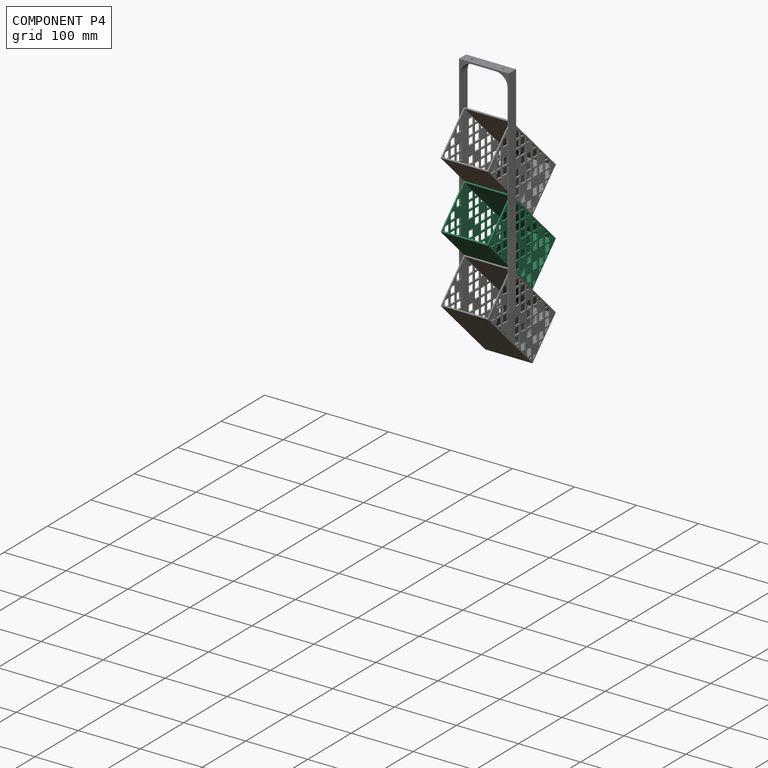
[diagram: component P4 — assembled]
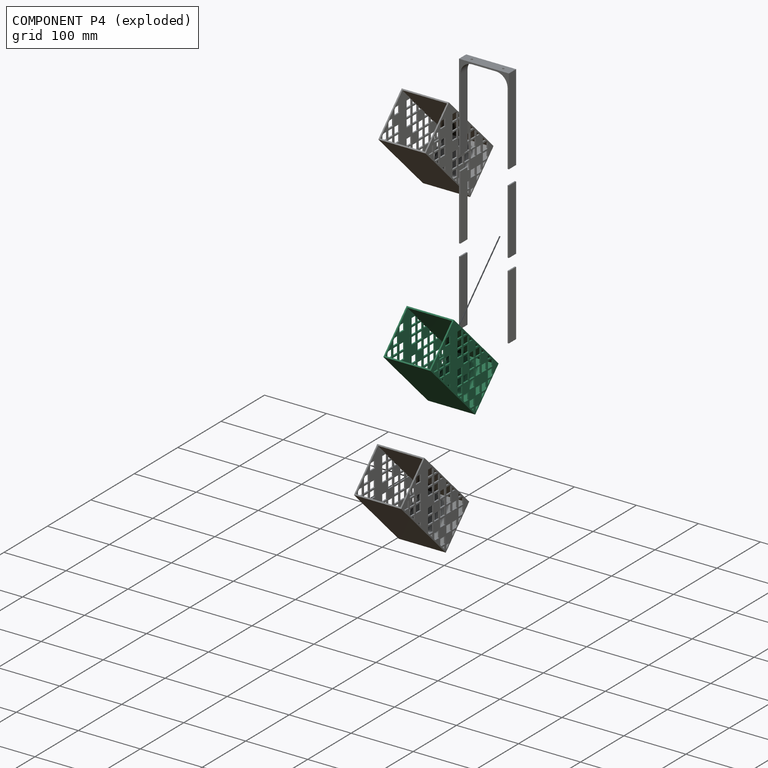
[diagram: component P4 — exploded]
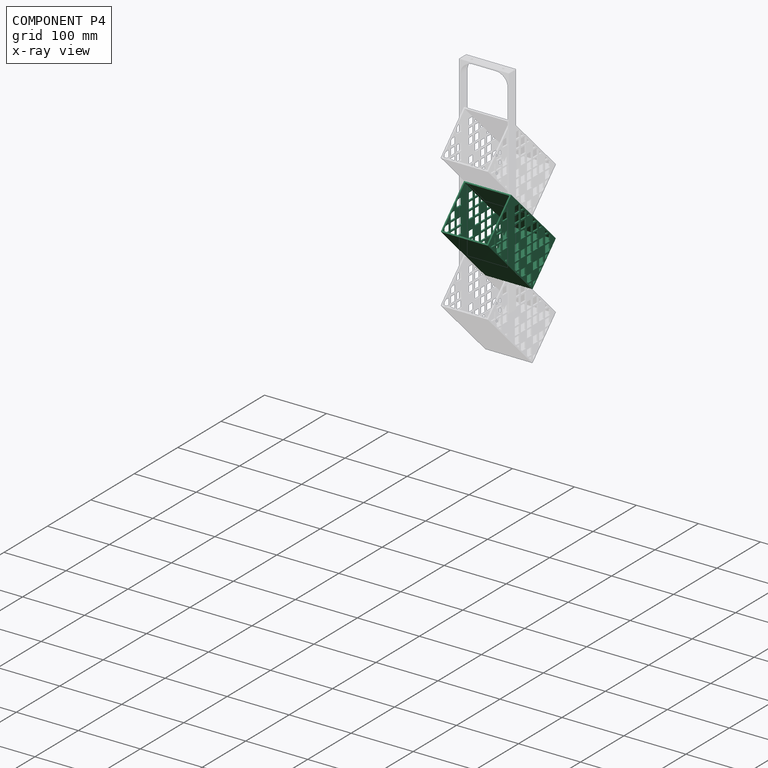
[diagram: component P4 — x-ray view]
COMPONENT P4 — same part as P2 (CADFS 00215293); its construction recipe is shown at P2.
Held by: FASTENED mate "Fastened 1" to P2; FASTENED mate "Fastened 2" to P5.
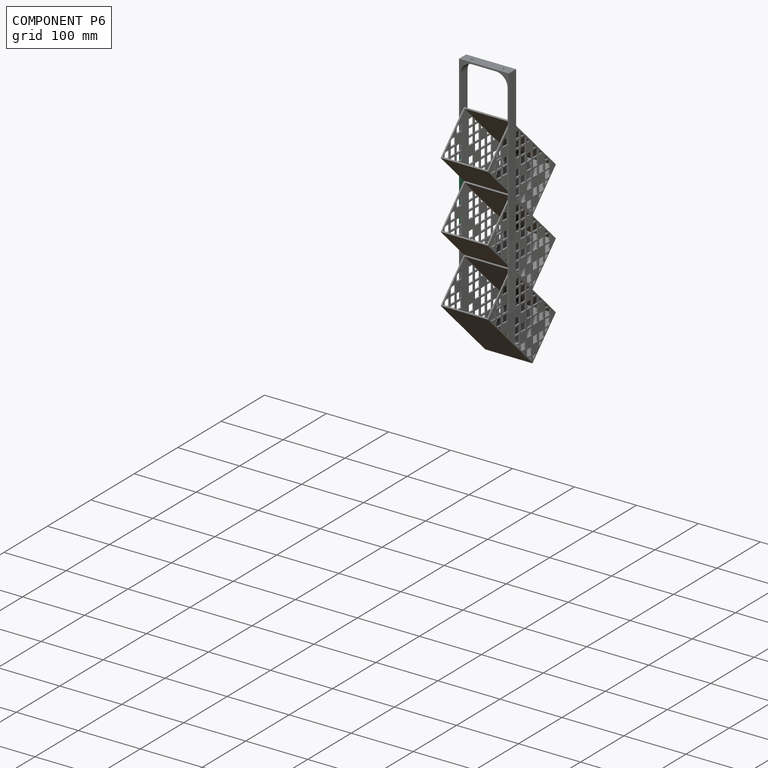
[diagram: component P6 — assembled]
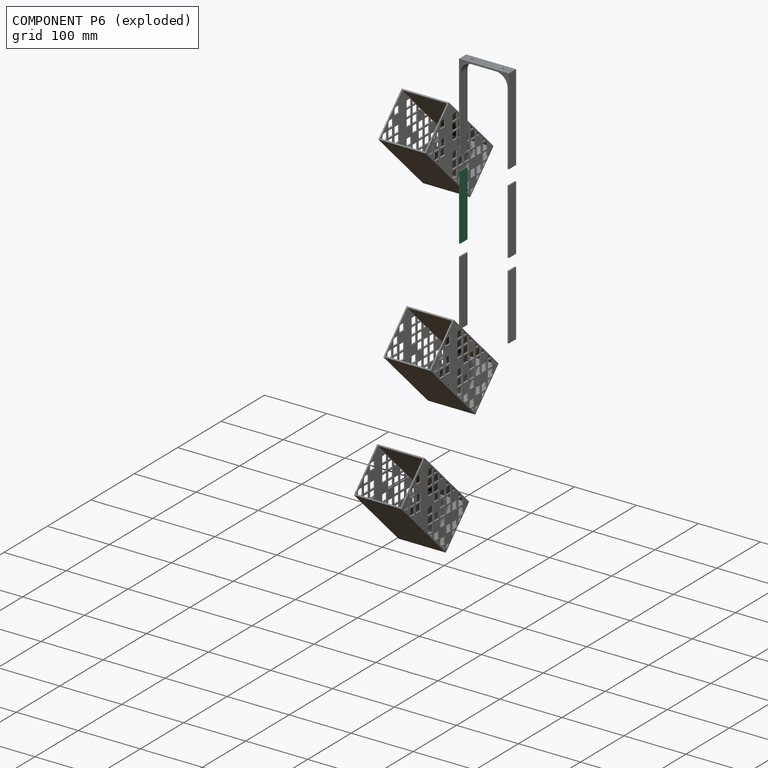
[diagram: component P6 — exploded]
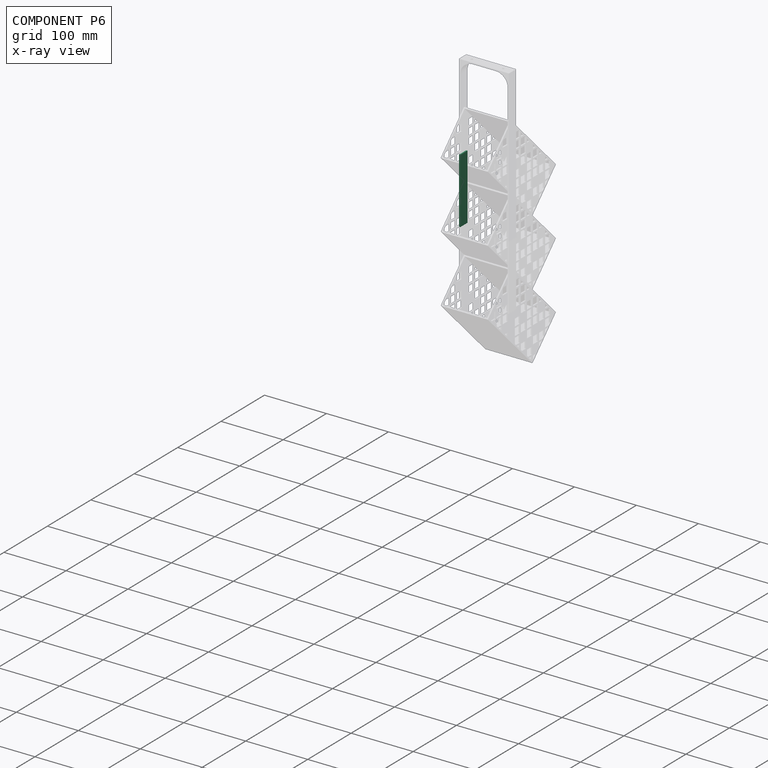
[diagram: component P6 — x-ray view]
COMPONENT P6 — same part as P0 (CADFS 00215295); its construction recipe is shown at P0.
Held by: FASTENED mate "Fastened 6" to P1; FASTENED mate "Fastened 5" to P7.
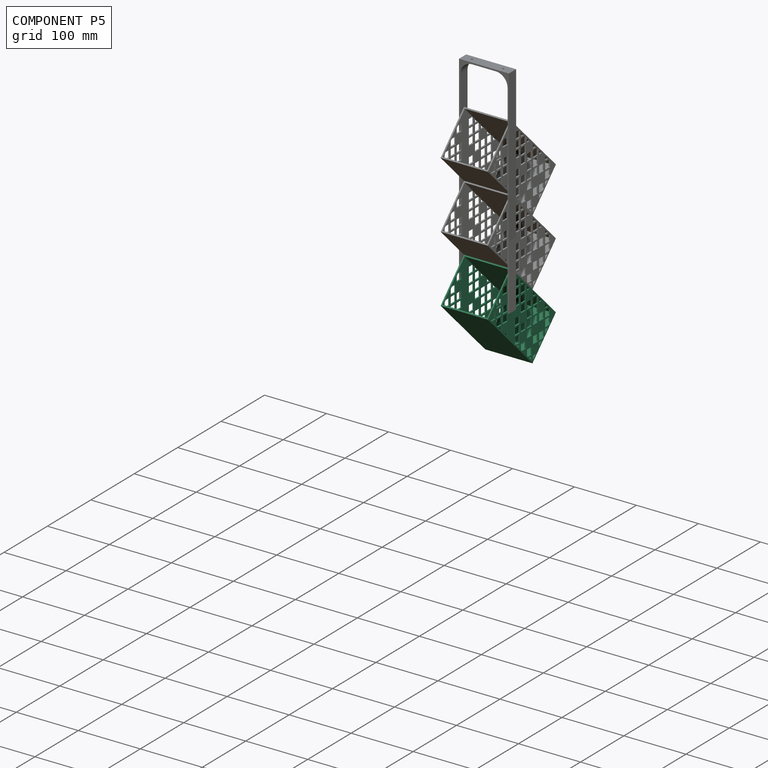
[diagram: component P5 — assembled]
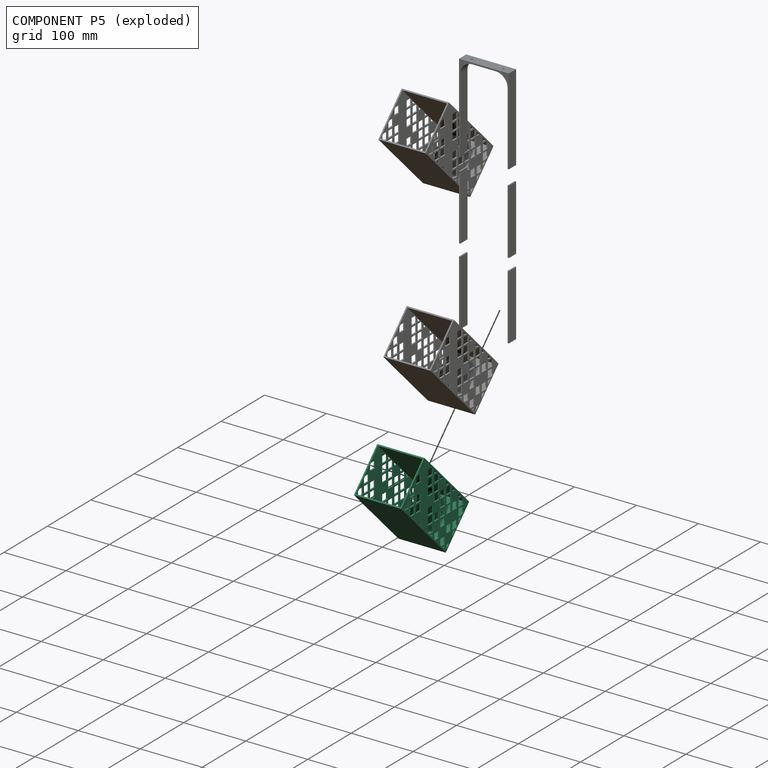
[diagram: component P5 — exploded]
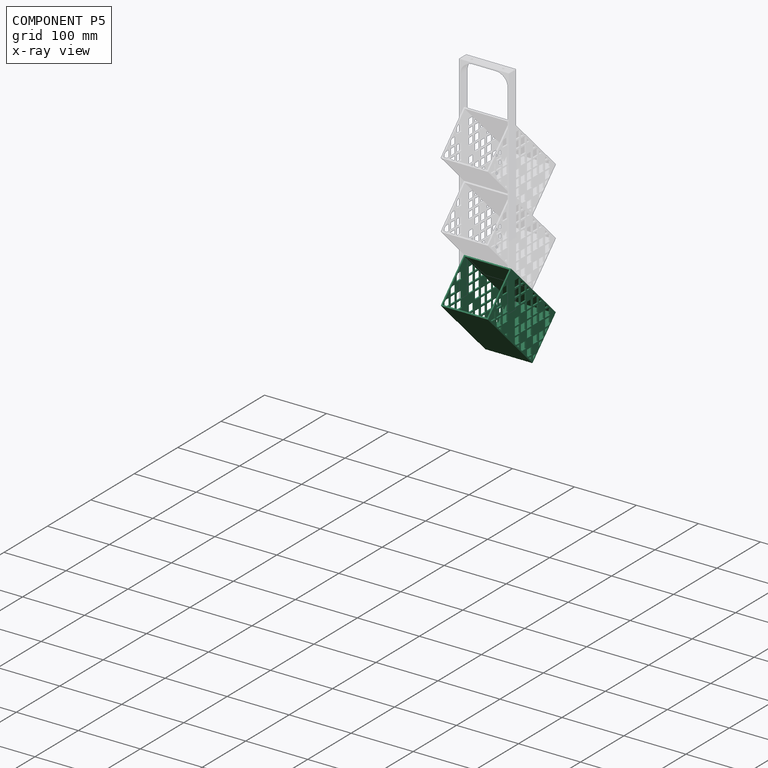
[diagram: component P5 — x-ray view]
COMPONENT P5 — same part as P2 (CADFS 00215293); its construction recipe is shown at P2.
Held by: FASTENED mate "Fastened 2" to P4.
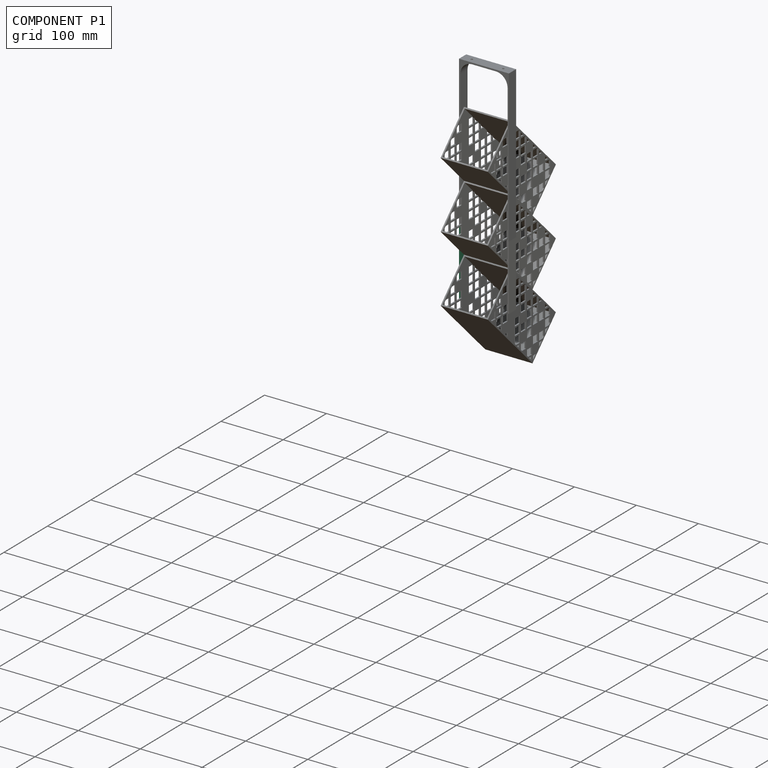
[diagram: component P1 — assembled]
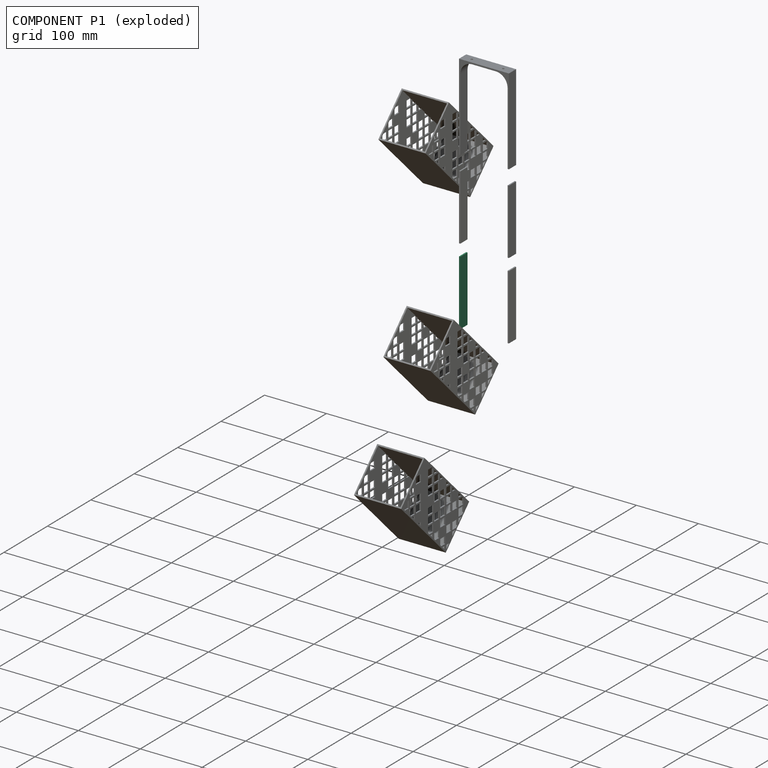
[diagram: component P1 — exploded]
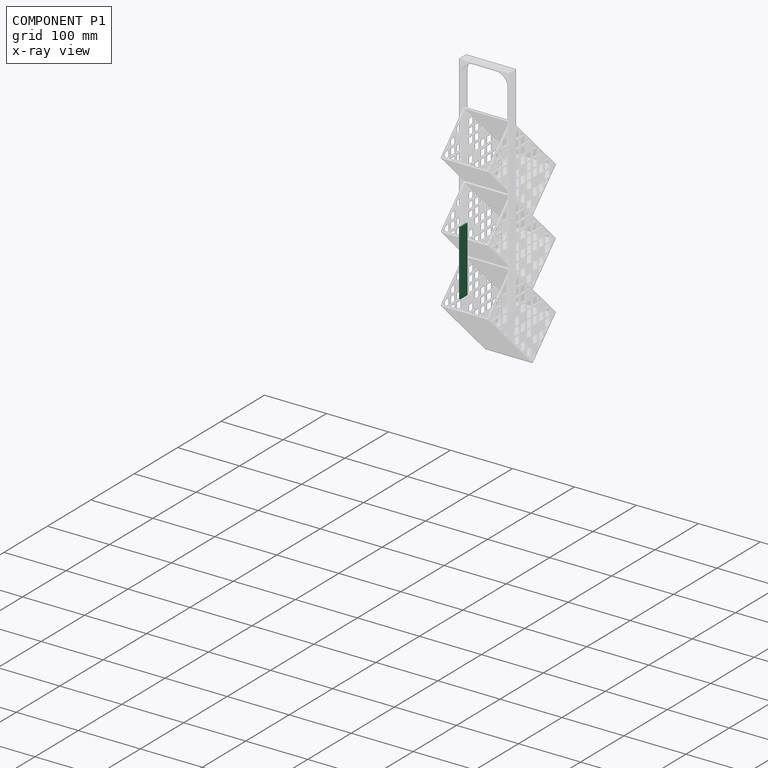
[diagram: component P1 — x-ray view]
COMPONENT P1 — same part as P0 (CADFS 00215295); its construction recipe is shown at P0.
Held by: FASTENED mate "Fastened 6" to P6.
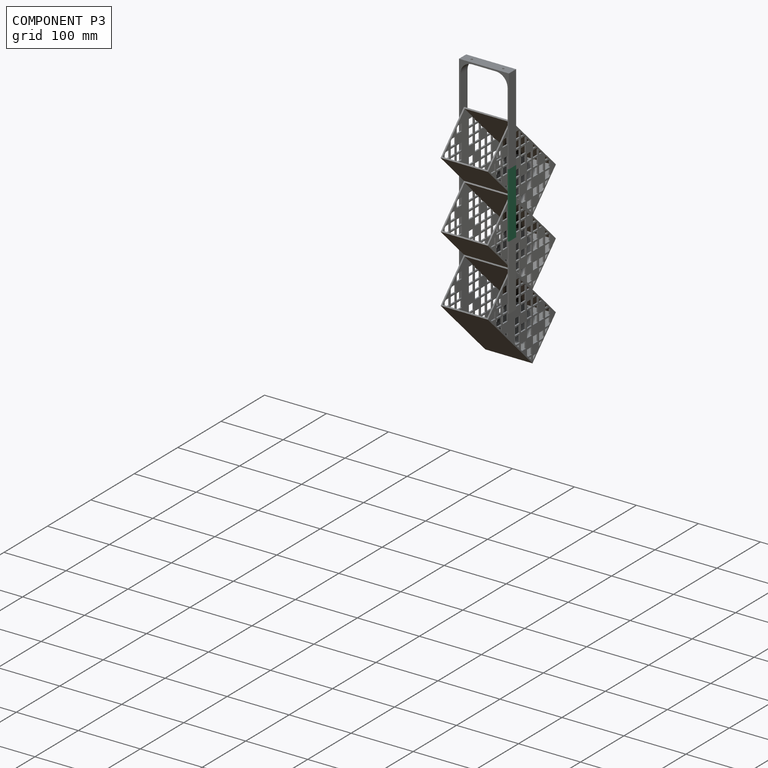
[diagram: component P3 — assembled]
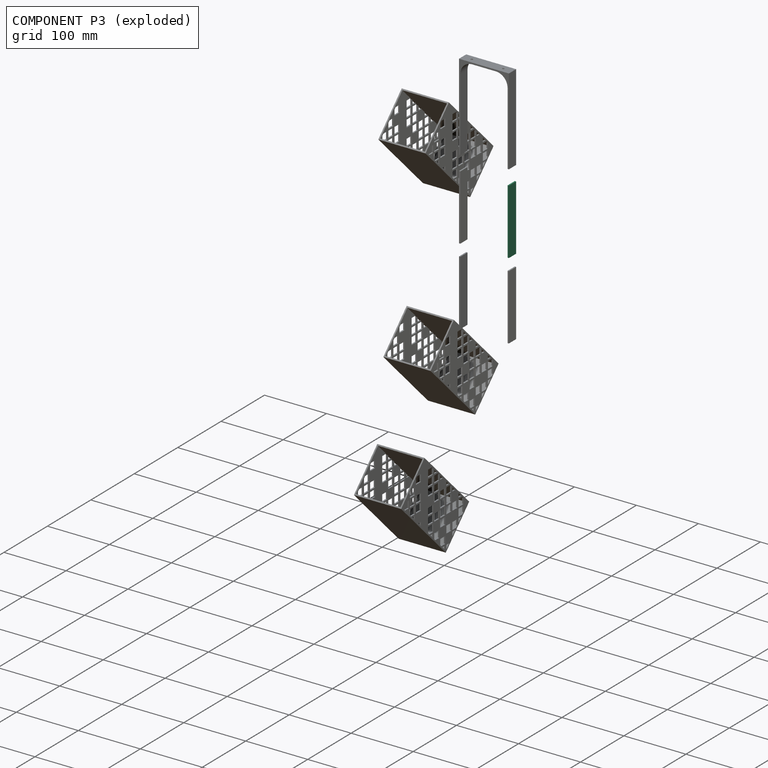
[diagram: component P3 — exploded]
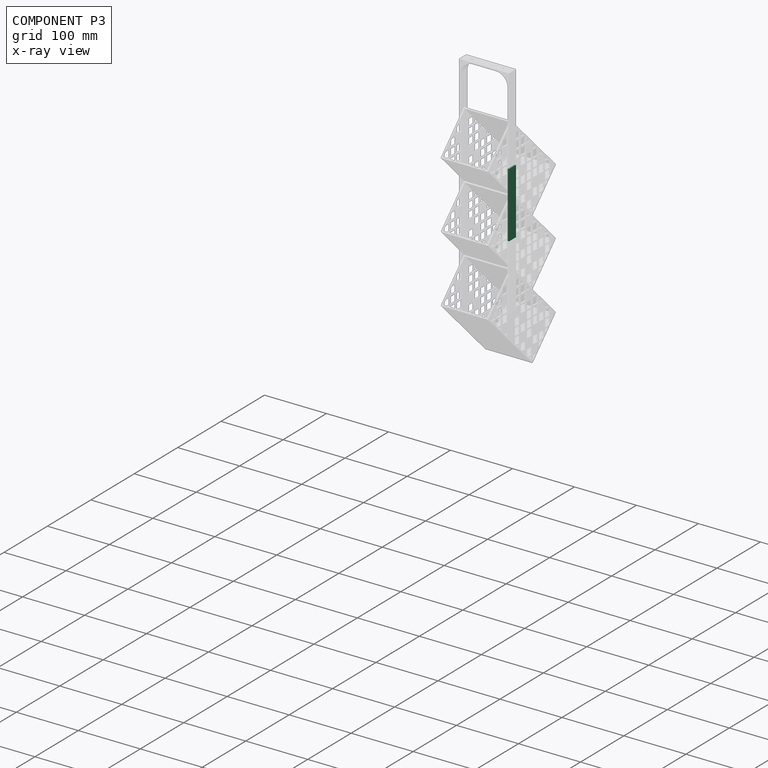
[diagram: component P3 — x-ray view]
COMPONENT P3 — same part as P0 (CADFS 00215295); its construction recipe is shown at P0.
Held by: FASTENED mate "Fastened 3" to P7; FASTENED mate "Fastened 4" to P0.
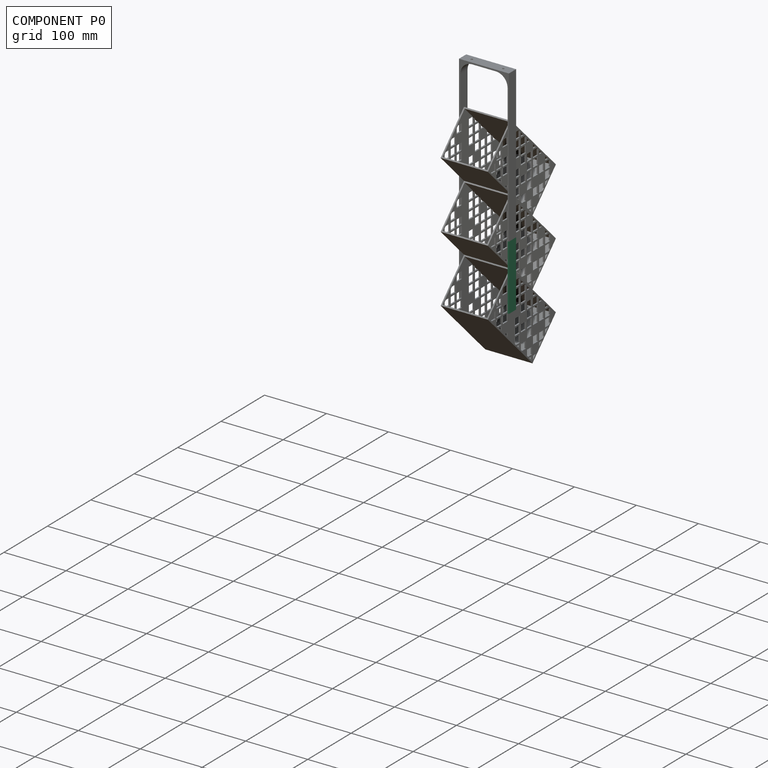
[diagram: component P0 — assembled]
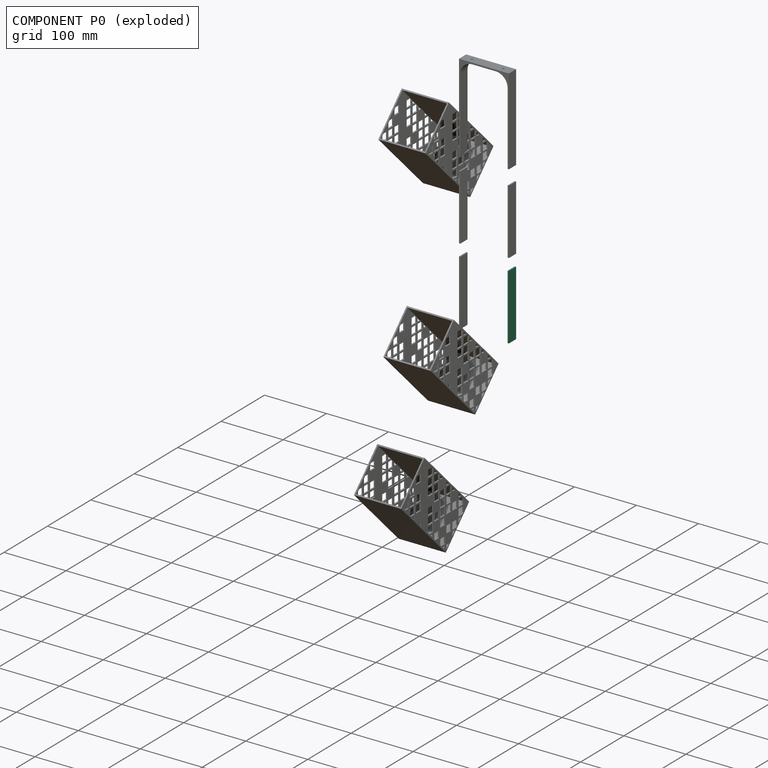
[diagram: component P0 — exploded]
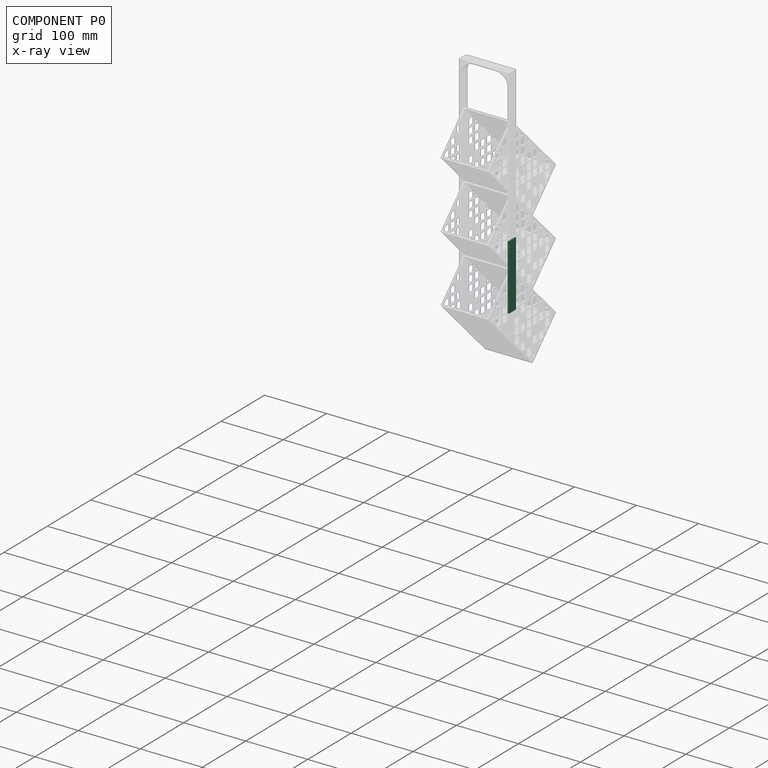
[diagram: component P0 — x-ray view]
COMPONENT P0 — recipe-attached (CADFS 00215295, mesh-verified: the recipe's output STEP matches this component's geometry to below the mesh-comparison resolution (tessellation chordal tolerance ~0.16 mm)).
Held by: FASTENED mate "Fastened 4" to P3.
Construction recipe (FeatureScript — the CAD program that rebuilds this solid; sketch coordinates are in the units given by the * unit suffixes, e.g. mm):

FeatureScript 1511;
import(path : "onshape/std/geometry.fs", version : "1511.0");
import(path : "onshape/std/common.fs", version : "1511.0");
const mm = millimeter;
const VERTEX = EntityType.VERTEX;
const EDGE = EntityType.EDGE;
const FACE = EntityType.FACE;
const BODY = EntityType.BODY;
function v(x, y){return vector(x, y);}
function OD(order){return orderDisambiguation(order);}
function OSD(set){return originalSetDisambiguation(set);}
function TD(topology){return topologyDisambiguation(topology);}
function TDD(query){return trueDependencyDisambiguation(query);}
function sQuery(a, b, c) {return sketchEntityQuery(a, b, c);}

annotation { "Feature Type Name" : "Feature", "Feature Type Description" : "" }
export const myFeature = defineFeature(function(context is Context, id is Id, definition is map)
    precondition{}
    {
        {
            var Q0;
            Q0=qCreatedBy(makeId("Top.planeOp"),FACE);
            var sketch = newSketch(context, id + "F0", { "sketchPlane" : qUnion([Q0])});
            skLineSegment(sketch, "E0.bottom", {"start": v(0, 0) * mm, "end": v(105.4, 0) * mm});
            skLineSegment(sketch, "E0.top", {"start": v(0, -16.5) * mm, "end": v(105.41, -16.5) * mm});
            skLineSegment(sketch, "E0.left", {"start": v(0, 0) * mm, "end": v(0, -16.5) * mm});
            skLineSegment(sketch, "E0.right", {"start": v(105.41, 0) * mm, "end": v(105.41, -16.5) * mm});
            skSolve(sketch);
        }
        {
            var Q0;
            Q0 = qSketchRegion(id + "F0", true);
            extrude(context, id + "F1", {"entities" : qUnion([Q0]), "depth" : 2.16 * mm});
        }
    });
PROVENANCE & LICENSES
Assembly (occurrences, transforms, mates, per-part STEP geometry): AutoMate dataset, Zenodo record 7776208, CC0.
Construction recipes: CADFS (HuggingFace VladPyatov/CADFS, CC-BY-4.0, layered over the ABC dataset), FeatureScript reconstruction programs keyed by ABC model id.
Join: ABC meta listings map ABC model id -> Onshape documentId; within a shared document, parts are matched by geometric signature (bounding-box dims + volume at 0.1% relative tolerance, exact B-rep face/solid counts).
Verification: 7 of this assembly's 8 components carry a recipe attachment, and every attachment is mesh-verified: the CADFS STEP and the AutoMate member STEP were compared as meshes in their shared local frame (symmetric sampled-point-to-mesh distance); worst across the 7 attachments: below the mesh-comparison resolution (tessellation chordal tolerance ~0.272 mm) on a 181 mm part.
Renders: orthographic iso camera (az 35 / el 25); the floor grid conveys scale (grid pitch printed in each image; no ruler). In the exploded view each component is displaced by its stored offset vector: the offsets alone carry the explosion direction (mate normal/axis signs are not orientation cues and do not encode it), and separation distances are assigned per mate-chain, not proportionally to assembly-order depth.
